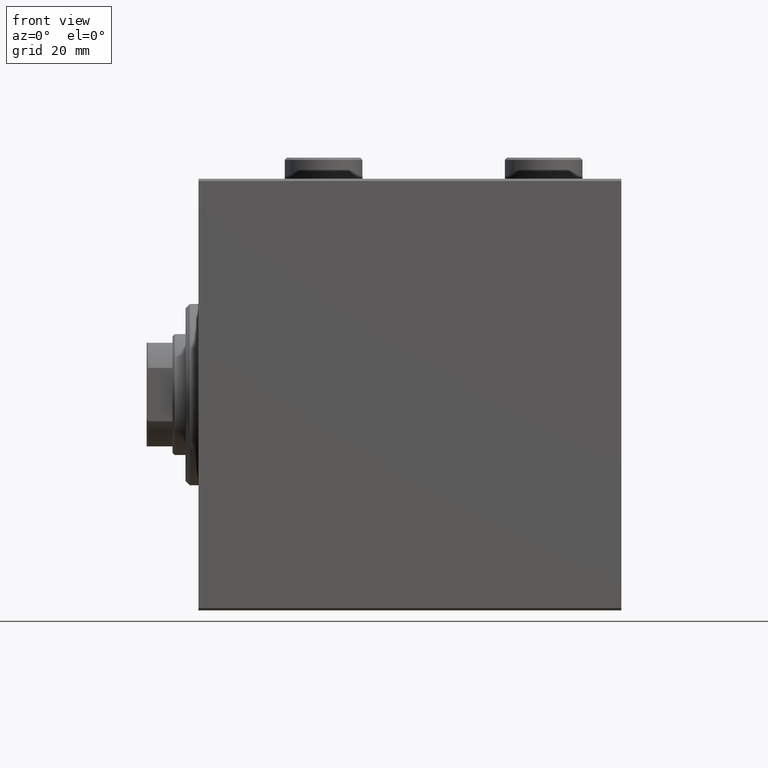
[diagram: clean part render]
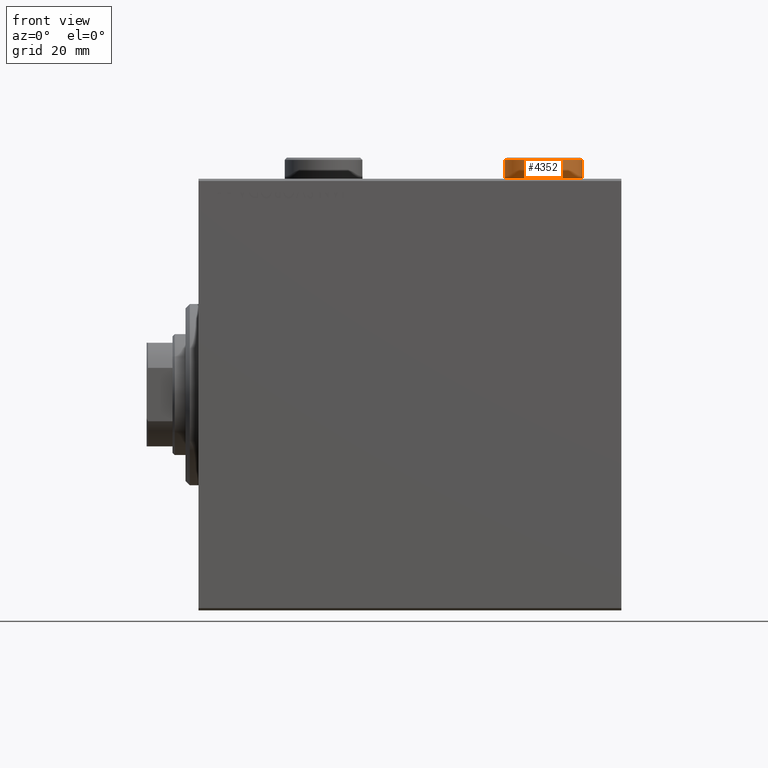
[diagram: same view with one face highlighted and labeled with its STEP entity id]
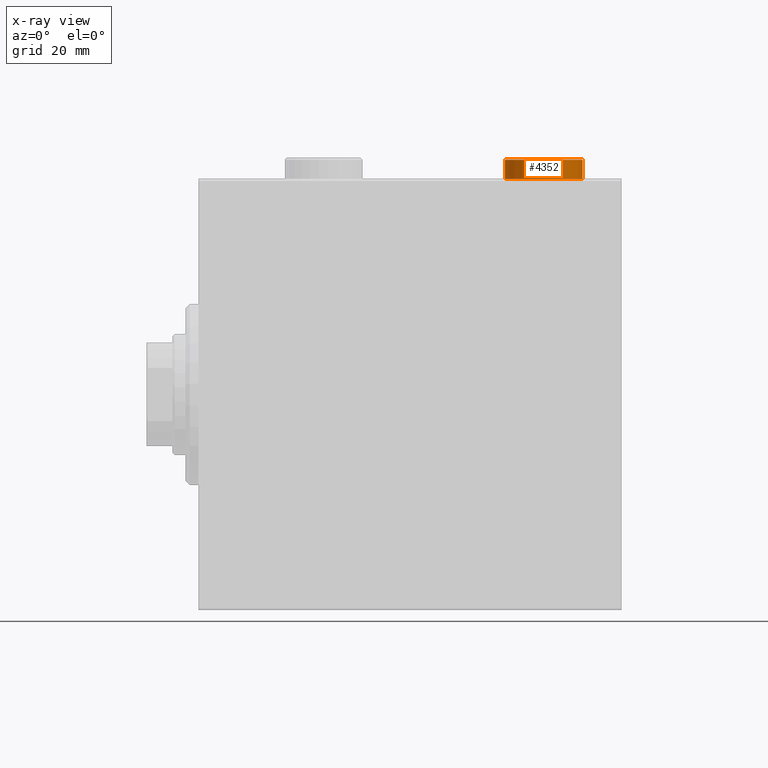
[diagram: x-ray of the same camera — body ghosted, the highlighted face saturated]
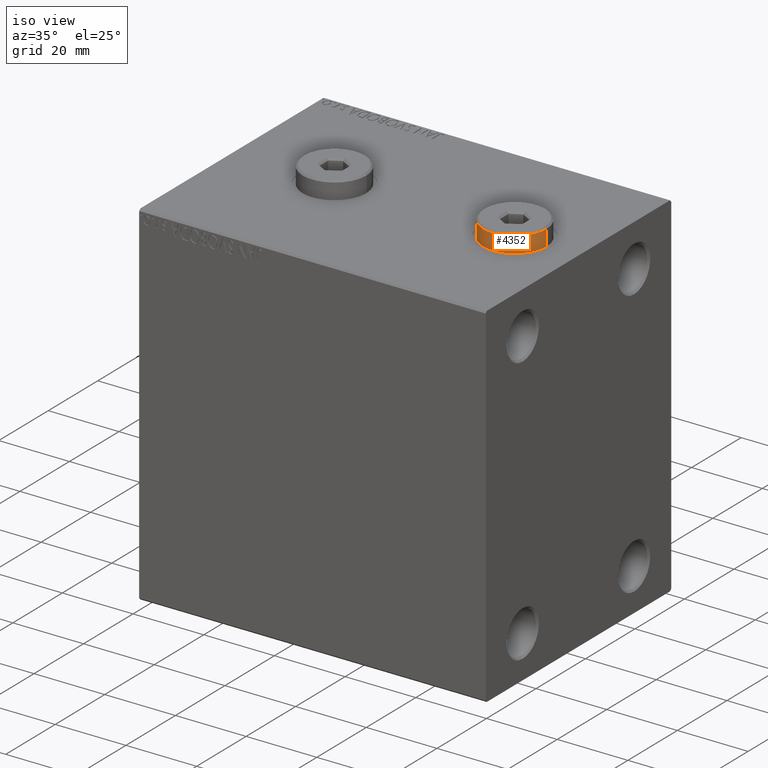
[diagram: same view with one face highlighted and labeled with its STEP entity id]
A machine part, front view. The second image highlights one B-rep face of the part: STEP entity #4352.
The next image is the same camera in x-ray: the body ghosted, the highlighted face saturated — about 3% of this face is hidden behind the body in this view.
A second angle (iso view) of the same face is appended — the face is thin or edge-on in the first view.
In plain terms, the highlighted cylindrical surface (partial cylindrical patch) has radius 9 mm, axis along (-0, -0, -1).
Its self-contained STEP definition (entity closure, byte-faithful):
#163 = CARTESIAN_POINT ( 'NONE',  ( 9.000000000000001776, 1.102182119232617911E-15, 0.000000000000000000 ) ) ;
#2695 = VERTEX_POINT ( 'NONE', #15237 ) ;
#4352 = ADVANCED_FACE ( 'NONE', ( #30567 ), #9310, .T. ) ;
#6522 = DIRECTION ( 'NONE',  ( -0.000000000000000000, -0.000000000000000000, -1.000000000000000000 ) ) ;
#9129 = DIRECTION ( 'NONE',  ( 1.000000000000000000, 0.000000000000000000, 0.000000000000000000 ) ) ;
#9310 = CYLINDRICAL_SURFACE ( 'NONE', #37344, 9.000000000000001776 ) ;
#9459 = DIRECTION ( 'NONE',  ( -0.000000000000000000, -0.000000000000000000, -1.000000000000000000 ) ) ;
#10089 = CIRCLE ( 'NONE', #44786, 9.000000000000001776 ) ;
#11355 = VERTEX_POINT ( 'NONE', #24959 ) ;
#11820 = ORIENTED_EDGE ( 'NONE', *, *, #12162, .T. ) ;
#11932 = ORIENTED_EDGE ( 'NONE', *, *, #17849, .T. ) ;
#12162 = EDGE_CURVE ( 'NONE', #11355, #13719, #10089, .T. ) ;
#12518 = ORIENTED_EDGE ( 'NONE', *, *, #29404, .F. ) ;
#12924 = LINE ( 'NONE', #27039, #31535 ) ;
#13333 = CARTESIAN_POINT ( 'NONE',  ( -9.000000000000001776, 0.000000000000000000, 4.500000000000006217 ) ) ;
#13719 = VERTEX_POINT ( 'NONE', #13333 ) ;
#15237 = CARTESIAN_POINT ( 'NONE',  ( -9.000000000000001776, 0.000000000000000000, 0.000000000000000000 ) ) ;
#17849 = EDGE_CURVE ( 'NONE', #2695, #31469, #24293, .T. ) ;
#18482 = DIRECTION ( 'NONE',  ( 1.000000000000000000, 0.000000000000000000, 0.000000000000000000 ) ) ;
#21711 = EDGE_LOOP ( 'NONE', ( #12518, #11820, #33392, #11932 ) ) ;
#23587 = LINE ( 'NONE', #44610, #26166 ) ;
#23799 = DIRECTION ( 'NONE',  ( -0.000000000000000000, -0.000000000000000000, -1.000000000000000000 ) ) ;
#24293 = CIRCLE ( 'NONE', #36842, 9.000000000000001776 ) ;
#24959 = CARTESIAN_POINT ( 'NONE',  ( 9.000000000000001776, 1.102182119232617911E-15, 4.500000000000006217 ) ) ;
#25408 = DIRECTION ( 'NONE',  ( 0.000000000000000000, 0.000000000000000000, -1.000000000000000000 ) ) ;
#26166 = VECTOR ( 'NONE', #23799, 1000.000000000000000 ) ;
#27039 = CARTESIAN_POINT ( 'NONE',  ( -9.000000000000001776, 0.000000000000000000, 5.000000000000000000 ) ) ;
#29404 = EDGE_CURVE ( 'NONE', #11355, #31469, #23587, .T. ) ;
#30567 = FACE_OUTER_BOUND ( 'NONE', #21711, .T. ) ;
#31469 = VERTEX_POINT ( 'NONE', #163 ) ;
#31535 = VECTOR ( 'NONE', #9459, 1000.000000000000000 ) ;
#33392 = ORIENTED_EDGE ( 'NONE', *, *, #40938, .T. ) ;
#34743 = CARTESIAN_POINT ( 'NONE',  ( 0.000000000000000000, 0.000000000000000000, 4.500000000000006217 ) ) ;
#36842 = AXIS2_PLACEMENT_3D ( 'NONE', #40587, #36894, #9129 ) ;
#36894 = DIRECTION ( 'NONE',  ( 0.000000000000000000, 0.000000000000000000, 1.000000000000000000 ) ) ;
#37344 = AXIS2_PLACEMENT_3D ( 'NONE', #45336, #6522, #44673 ) ;
#40587 = CARTESIAN_POINT ( 'NONE',  ( 0.000000000000000000, 0.000000000000000000, 0.000000000000000000 ) ) ;
#40938 = EDGE_CURVE ( 'NONE', #13719, #2695, #12924, .T. ) ;
#44610 = CARTESIAN_POINT ( 'NONE',  ( 9.000000000000001776, 1.102182119232617911E-15, 5.000000000000000000 ) ) ;
#44673 = DIRECTION ( 'NONE',  ( -1.000000000000000000, 0.000000000000000000, 0.000000000000000000 ) ) ;
#44786 = AXIS2_PLACEMENT_3D ( 'NONE', #34743, #25408, #18482 ) ;
#45336 = CARTESIAN_POINT ( 'NONE',  ( 0.000000000000000000, 0.000000000000000000, 5.000000000000000000 ) ) ;